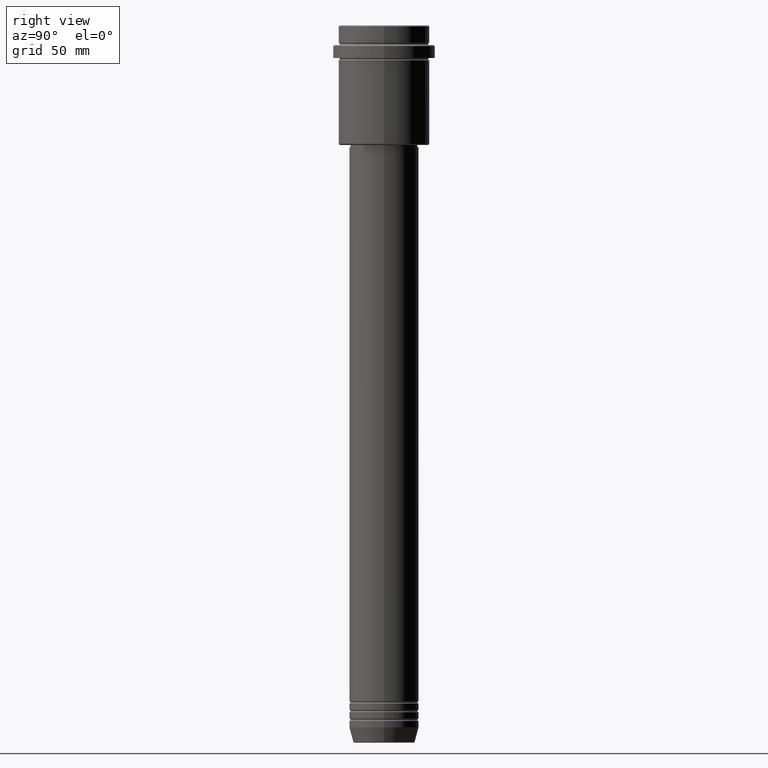
[diagram: clean part render]
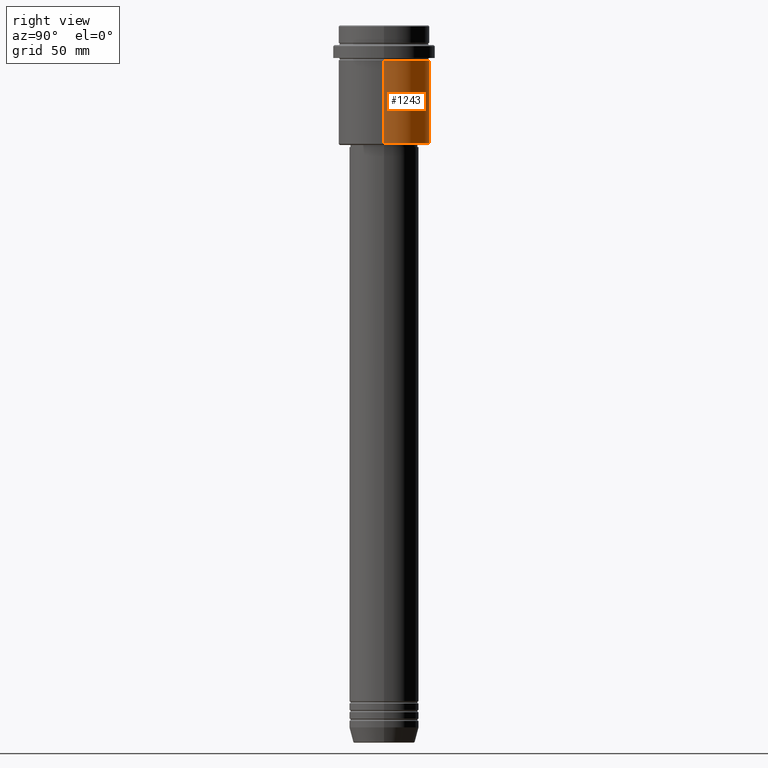
[diagram: same view with one face highlighted and labeled with its STEP entity id]
A machine part, right view. The second image highlights one B-rep face of the part: STEP entity #1243.
In plain terms, the highlighted cylindrical surface (partial cylindrical patch) has radius 21 mm, axis along (-0, -0, 1).
Its self-contained STEP definition (entity closure, byte-faithful):
#4 = EDGE_CURVE ( 'NONE', #110, #1369, #1310, .T. ) ;
#30 = DIRECTION ( 'NONE',  ( -0.000000000000000000, -0.000000000000000000, 1.000000000000000000 ) ) ;
#45 = ORIENTED_EDGE ( 'NONE', *, *, #1361, .F. ) ;
#78 = LINE ( 'NONE', #860, #878 ) ;
#85 = DIRECTION ( 'NONE',  ( -0.000000000000000000, -0.000000000000000000, 1.000000000000000000 ) ) ;
#110 = VERTEX_POINT ( 'NONE', #672 ) ;
#128 = CARTESIAN_POINT ( 'NONE',  ( 0.000000000000000000, 0.000000000000000000, 0.000000000000000000 ) ) ;
#190 = DIRECTION ( 'NONE',  ( -0.000000000000000000, -0.000000000000000000, 1.000000000000000000 ) ) ;
#237 = VECTOR ( 'NONE', #85, 1000.000000000000000 ) ;
#241 = DIRECTION ( 'NONE',  ( 1.000000000000000000, 0.000000000000000000, 0.000000000000000000 ) ) ;
#272 = DIRECTION ( 'NONE',  ( 1.000000000000000000, 0.000000000000000000, 0.000000000000000000 ) ) ;
#326 = AXIS2_PLACEMENT_3D ( 'NONE', #128, #30, #241 ) ;
#337 = FACE_OUTER_BOUND ( 'NONE', #664, .T. ) ;
#429 = DIRECTION ( 'NONE',  ( -1.000000000000000000, 0.000000000000000000, 0.000000000000000000 ) ) ;
#624 = LINE ( 'NONE', #1073, #237 ) ;
#630 = EDGE_CURVE ( 'NONE', #1075, #849, #1063, .T. ) ;
#664 = EDGE_LOOP ( 'NONE', ( #1210, #1155, #1100, #45 ) ) ;
#665 = AXIS2_PLACEMENT_3D ( 'NONE', #1150, #677, #272 ) ;
#672 = CARTESIAN_POINT ( 'NONE',  ( 20.99999999999999645, 0.000000000000000000, -54.49999999999996447 ) ) ;
#677 = DIRECTION ( 'NONE',  ( -0.000000000000000000, -0.000000000000000000, 1.000000000000000000 ) ) ;
#743 = CARTESIAN_POINT ( 'NONE',  ( -20.99999999999999645, 2.571758278209441267E-15, -54.49999999999996447 ) ) ;
#796 = CARTESIAN_POINT ( 'NONE',  ( 20.99999999999999645, 0.000000000000000000, -16.00000000000000355 ) ) ;
#849 = VERTEX_POINT ( 'NONE', #1220 ) ;
#860 = CARTESIAN_POINT ( 'NONE',  ( 20.99999999999999645, 0.000000000000000000, 0.000000000000000000 ) ) ;
#878 = VECTOR ( 'NONE', #190, 1000.000000000000000 ) ;
#887 = CARTESIAN_POINT ( 'NONE',  ( 0.000000000000000000, 0.000000000000000000, -54.49999999999996447 ) ) ;
#1063 = CIRCLE ( 'NONE', #665, 20.99999999999999645 ) ;
#1073 = CARTESIAN_POINT ( 'NONE',  ( -20.99999999999999645, 2.571758278209441267E-15, 0.000000000000000000 ) ) ;
#1075 = VERTEX_POINT ( 'NONE', #796 ) ;
#1100 = ORIENTED_EDGE ( 'NONE', *, *, #630, .F. ) ;
#1150 = CARTESIAN_POINT ( 'NONE',  ( 0.000000000000000000, 0.000000000000000000, -16.00000000000000355 ) ) ;
#1155 = ORIENTED_EDGE ( 'NONE', *, *, #1372, .T. ) ;
#1210 = ORIENTED_EDGE ( 'NONE', *, *, #4, .T. ) ;
#1220 = CARTESIAN_POINT ( 'NONE',  ( -20.99999999999999645, 2.571758278209441267E-15, -16.00000000000000355 ) ) ;
#1232 = CYLINDRICAL_SURFACE ( 'NONE', #326, 20.99999999999999645 ) ;
#1243 = ADVANCED_FACE ( 'NONE', ( #337 ), #1232, .T. ) ;
#1267 = AXIS2_PLACEMENT_3D ( 'NONE', #887, #1337, #429 ) ;
#1310 = CIRCLE ( 'NONE', #1267, 20.99999999999999645 ) ;
#1337 = DIRECTION ( 'NONE',  ( -0.000000000000000000, -0.000000000000000000, 1.000000000000000000 ) ) ;
#1361 = EDGE_CURVE ( 'NONE', #110, #1075, #78, .T. ) ;
#1369 = VERTEX_POINT ( 'NONE', #743 ) ;
#1372 = EDGE_CURVE ( 'NONE', #1369, #849, #624, .T. ) ;